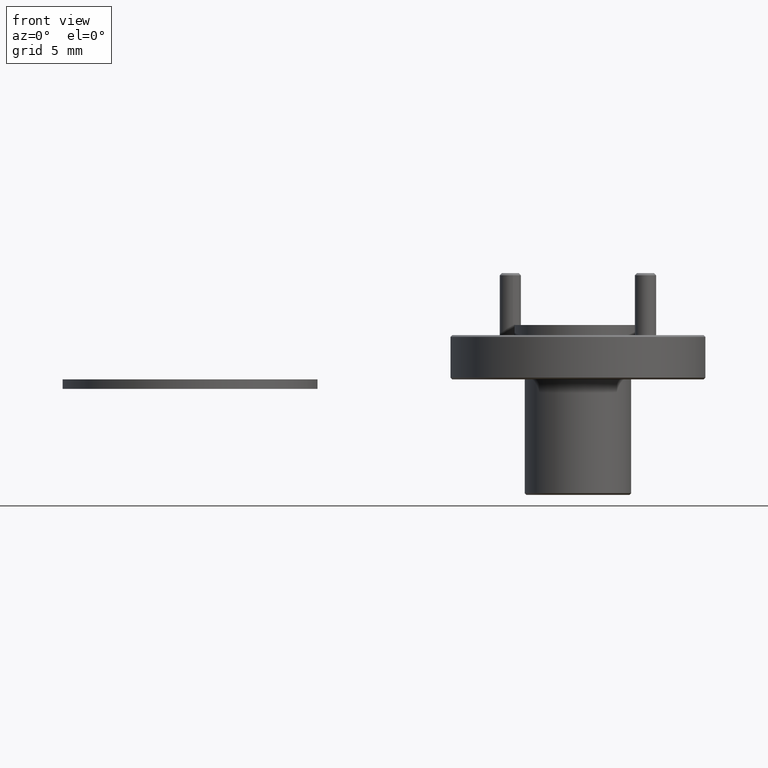
[diagram: clean part render]
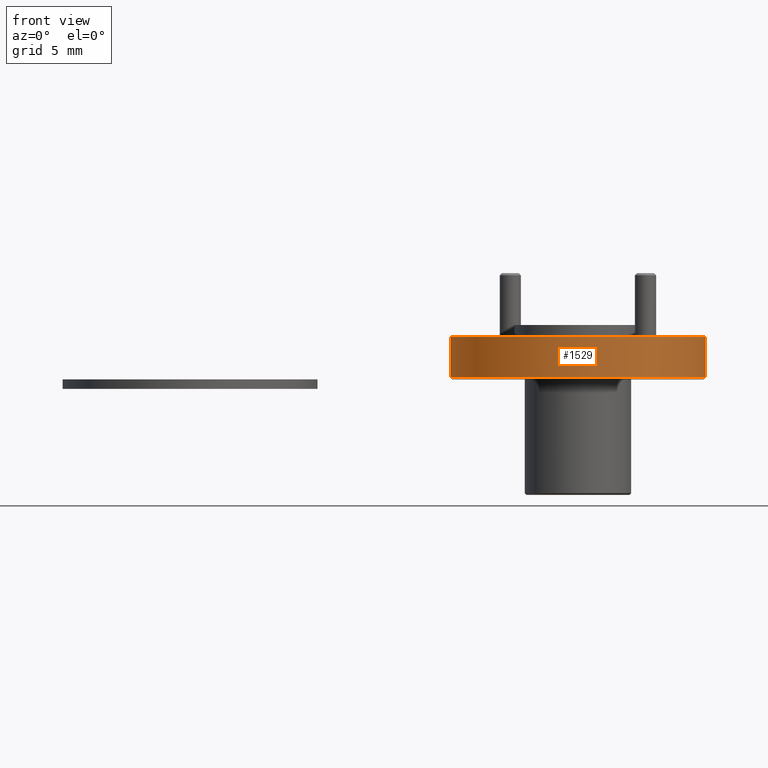
[diagram: same view with one face highlighted and labeled with its STEP entity id]
A machine part, front view. The second image highlights one B-rep face of the part: STEP entity #1529.
In plain terms, the highlighted cylindrical surface (partial cylindrical patch) has radius 9.525 mm, axis along (-0, -0, -1).
Its self-contained STEP definition (entity closure, byte-faithful):
#48 = ORIENTED_EDGE ( 'NONE', *, *, #1604, .T. ) ;
#95 = DIRECTION ( 'NONE',  ( -0.0000000000000000000, -0.0000000000000000000, -1.000000000000000000 ) ) ;
#181 = CARTESIAN_POINT ( 'NONE',  ( -0.8970838804723675300, 1.222388916362182800, -0.3070940517253739100 ) ) ;
#331 = CARTESIAN_POINT ( 'NONE',  ( -1.272083880472367500, 1.222388916362182800, -0.3120940517253735800 ) ) ;
#339 = CARTESIAN_POINT ( 'NONE',  ( -0.8970838804723675300, 1.222388916362182800, -0.4320940517253734600 ) ) ;
#372 = CARTESIAN_POINT ( 'NONE',  ( -0.5220838804723676500, 1.222388916362182800, -0.4320940517253734600 ) ) ;
#462 = EDGE_CURVE ( 'NONE', #2823, #2423, #1288, .T. ) ;
#487 = CIRCLE ( 'NONE', #738, 0.3749999999999999400 ) ;
#525 = VERTEX_POINT ( 'NONE', #1473 ) ;
#690 = FACE_OUTER_BOUND ( 'NONE', #2481, .T. ) ;
#702 = AXIS2_PLACEMENT_3D ( 'NONE', #2163, #1714, #2185 ) ;
#738 = AXIS2_PLACEMENT_3D ( 'NONE', #339, #1025, #2660 ) ;
#781 = CARTESIAN_POINT ( 'NONE',  ( -0.5220838804723676500, 1.222388916362182800, -0.3070940517253739100 ) ) ;
#826 = EDGE_CURVE ( 'NONE', #2823, #1340, #2648, .T. ) ;
#861 = DIRECTION ( 'NONE',  ( -1.000000000000000000, 0.0000000000000000000, 0.0000000000000000000 ) ) ;
#964 = VECTOR ( 'NONE', #95, 39.37007874015748100 ) ;
#1025 = DIRECTION ( 'NONE',  ( -0.0000000000000000000, -0.0000000000000000000, 1.000000000000000000 ) ) ;
#1240 = ORIENTED_EDGE ( 'NONE', *, *, #462, .F. ) ;
#1288 = LINE ( 'NONE', #781, #964 ) ;
#1340 = VERTEX_POINT ( 'NONE', #331 ) ;
#1465 = ORIENTED_EDGE ( 'NONE', *, *, #1959, .T. ) ;
#1473 = CARTESIAN_POINT ( 'NONE',  ( -1.272083880472367500, 1.222388916362182800, -0.4320940517253734600 ) ) ;
#1529 = ADVANCED_FACE ( 'NONE', ( #690 ), #1871, .T. ) ;
#1604 = EDGE_CURVE ( 'NONE', #1340, #525, #2758, .T. ) ;
#1606 = DIRECTION ( 'NONE',  ( -0.0000000000000000000, -0.0000000000000000000, -1.000000000000000000 ) ) ;
#1714 = DIRECTION ( 'NONE',  ( 0.0000000000000000000, 0.0000000000000000000, -1.000000000000000000 ) ) ;
#1752 = DIRECTION ( 'NONE',  ( -0.0000000000000000000, -0.0000000000000000000, -1.000000000000000000 ) ) ;
#1871 = CYLINDRICAL_SURFACE ( 'NONE', #1891, 0.3749999999999999400 ) ;
#1891 = AXIS2_PLACEMENT_3D ( 'NONE', #181, #1752, #861 ) ;
#1959 = EDGE_CURVE ( 'NONE', #525, #2423, #487, .T. ) ;
#2163 = CARTESIAN_POINT ( 'NONE',  ( -0.8970838804723675300, 1.222388916362182800, -0.3120940517253735800 ) ) ;
#2185 = DIRECTION ( 'NONE',  ( 1.000000000000000000, 0.0000000000000000000, 0.0000000000000000000 ) ) ;
#2349 = ORIENTED_EDGE ( 'NONE', *, *, #826, .T. ) ;
#2373 = VECTOR ( 'NONE', #1606, 39.37007874015748100 ) ;
#2423 = VERTEX_POINT ( 'NONE', #372 ) ;
#2478 = CARTESIAN_POINT ( 'NONE',  ( -1.272083880472367500, 1.222388916362182800, -0.3070940517253739100 ) ) ;
#2481 = EDGE_LOOP ( 'NONE', ( #1240, #2349, #48, #1465 ) ) ;
#2648 = CIRCLE ( 'NONE', #702, 0.3749999999999999400 ) ;
#2660 = DIRECTION ( 'NONE',  ( 1.000000000000000000, 0.0000000000000000000, 0.0000000000000000000 ) ) ;
#2758 = LINE ( 'NONE', #2478, #2373 ) ;
#2808 = CARTESIAN_POINT ( 'NONE',  ( -0.5220838804723676500, 1.222388916362182800, -0.3120940517253735800 ) ) ;
#2823 = VERTEX_POINT ( 'NONE', #2808 ) ;